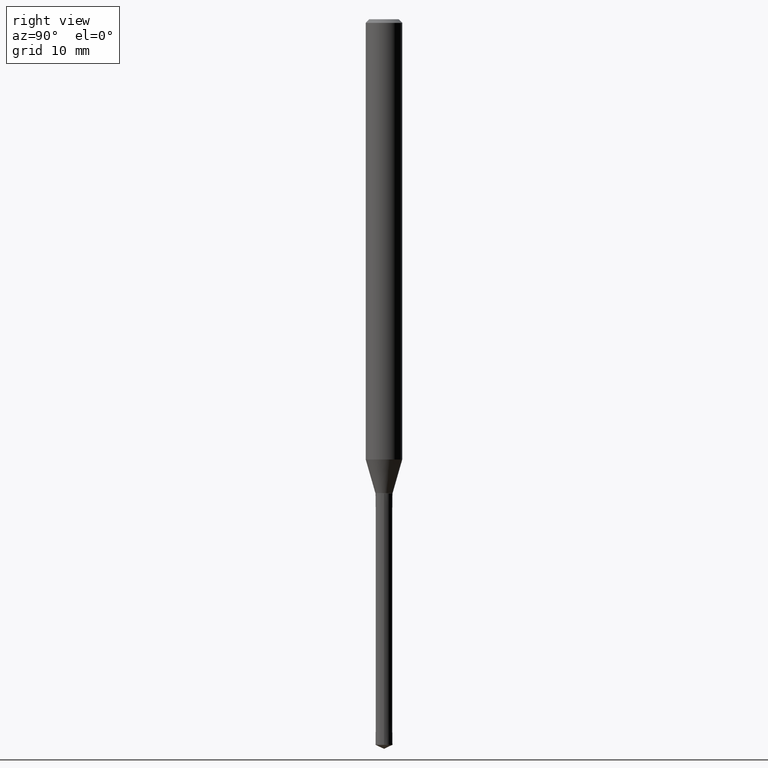
[diagram: clean part render]
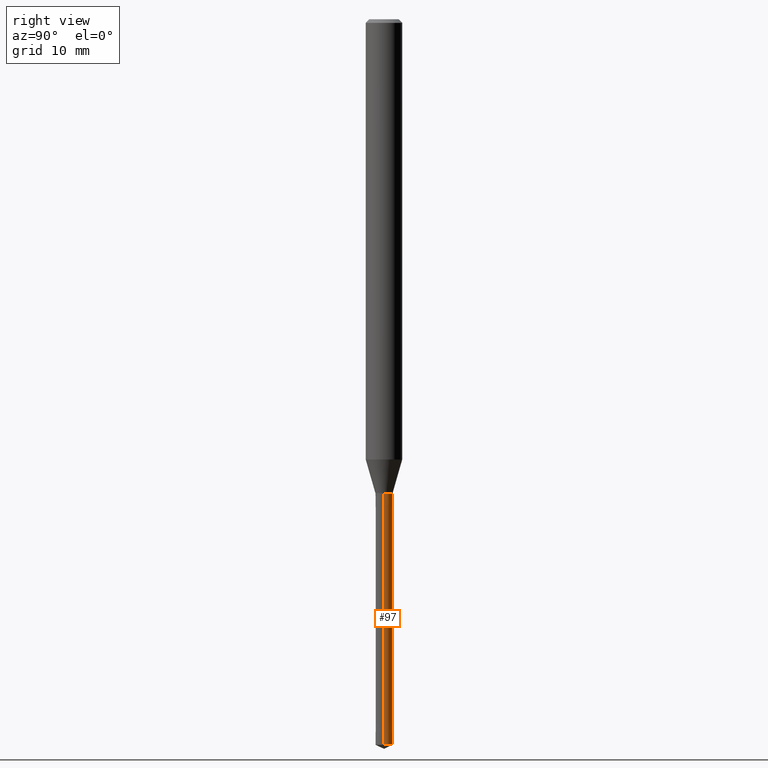
[diagram: same view with one face highlighted and labeled with its STEP entity id]
A machine part, right view. The second image highlights one B-rep face of the part: STEP entity #97.
In plain terms, the highlighted conical surface has half-angle 0.003 deg.
Its self-contained STEP definition (entity closure, byte-faithful):
#97=ADVANCED_FACE('',(#232),#233,.T.);
#99=VERTEX_POINT('',#235);
#107=EDGE_CURVE('',#99,#169,#244,.T.);
#147=EDGE_CURVE('',#201,#99,#290,.T.);
#149=EDGE_CURVE('',#165,#169,#292,.T.);
#165=VERTEX_POINT('',#310);
#169=VERTEX_POINT('',#314);
#187=EDGE_CURVE('',#165,#201,#336,.T.);
#201=VERTEX_POINT('',#351);
#232=FACE_OUTER_BOUND('',#379,.T.);
#233=CONICAL_SURFACE('',#380,0.7005,4.83709050284995E-005);
#235=CARTESIAN_POINT('',(0.7,8.57224447675664E-017,-59.67358464));
#244=LINE('',#393,#394);
#290=CIRCLE('',#450,0.7);
#292=CIRCLE('',#453,0.701);
#310=CARTESIAN_POINT('',(-0.701,0.0,-39.0));
#314=CARTESIAN_POINT('',(0.701,8.58449054029486E-017,-39.0));
#336=LINE('',#504,#505);
#351=CARTESIAN_POINT('',(-0.7,0.0,-59.67358464));
#379=EDGE_LOOP('',(#541,#542,#543,#544));
#380=AXIS2_PLACEMENT_3D('',#545,#546,#547);
#393=CARTESIAN_POINT('',(0.7005,8.57836750852575E-017,-49.33679232));
#394=VECTOR('',#559,1.0);
#450=AXIS2_PLACEMENT_3D('',#617,#618,#619);
#453=AXIS2_PLACEMENT_3D('',#620,#621,#622);
#504=CARTESIAN_POINT('',(-0.7005,-8.57836750852575E-017,-49.33679232));
#505=VECTOR('',#682,1.0);
#541=ORIENTED_EDGE('',*,*,#187,.F.);
#542=ORIENTED_EDGE('',*,*,#149,.T.);
#543=ORIENTED_EDGE('',*,*,#107,.F.);
#544=ORIENTED_EDGE('',*,*,#147,.F.);
#545=CARTESIAN_POINT('',(0.0,0.0,-49.33679232));
#546=DIRECTION('',(-0.0,-0.0,1.0));
#547=DIRECTION('',(-1.0,0.0,0.0));
#559=DIRECTION('',(4.83709050096369E-005,5.923531761494E-021,0.999999998830128));
#617=CARTESIAN_POINT('',(0.0,0.0,-59.67358464));
#618=DIRECTION('',(0.0,0.0,-1.0));
#619=DIRECTION('',(-1.0,0.0,0.0));
#620=CARTESIAN_POINT('',(0.0,0.0,-39.0));
#621=DIRECTION('',(0.0,0.0,-1.0));
#622=DIRECTION('',(-1.0,0.0,0.0));
#682=DIRECTION('',(4.83709050096369E-005,5.923531761494E-021,-0.999999998830128));